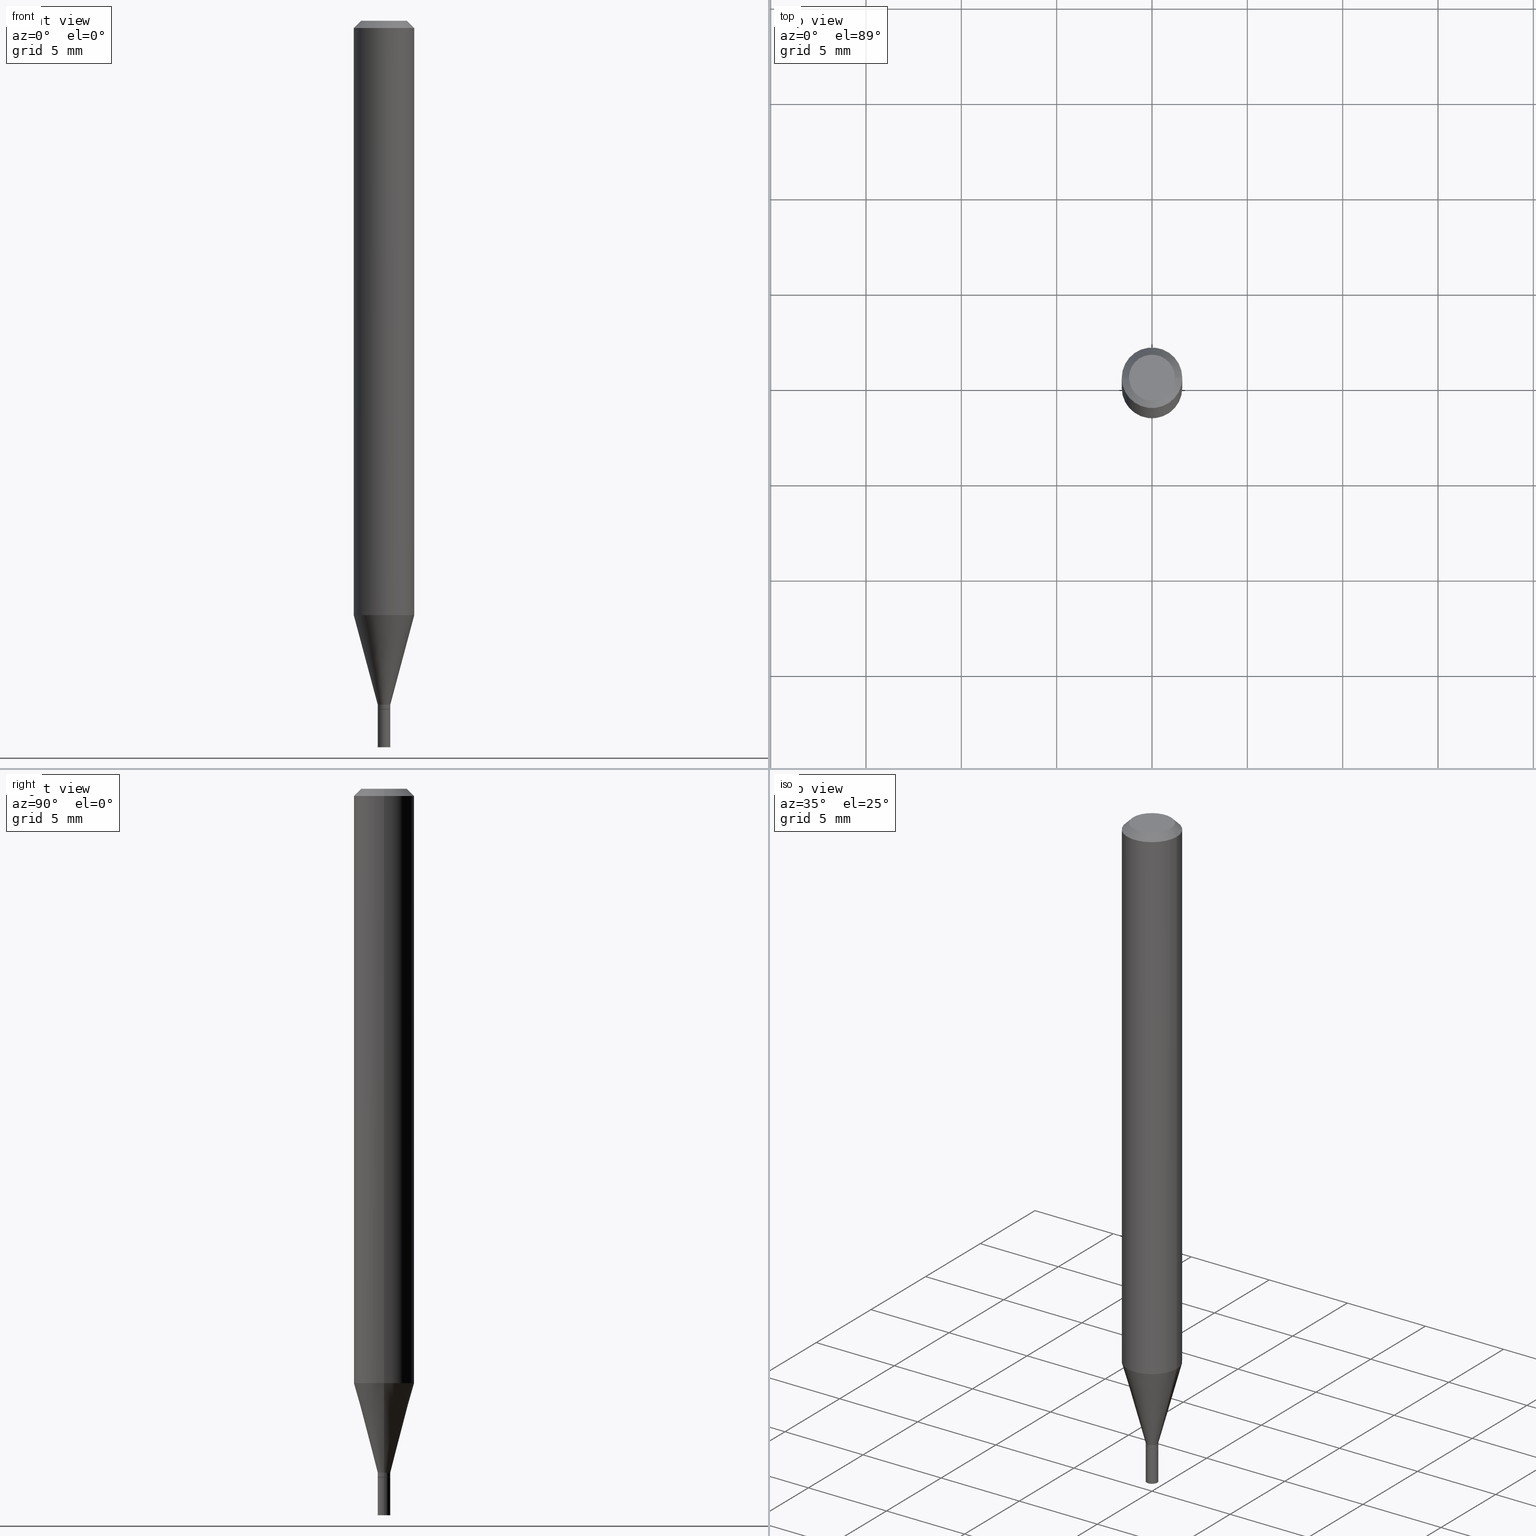
[diagram: canonical four-view strip — front | top / right | iso, engineering-drawing reading convention]
A machine part, canonical four-view strip (front | top / right | iso — engineering-drawing reading convention). The complete STEP part file that produces these views, byte-faithful:
ISO-10303-21;
HEADER;
FILE_DESCRIPTION (( 'STEP AP203' ),
    '1' );
FILE_NAME ('02333.STEP',
    '2024-03-18T20:08:54',
    ( '' ),
    ( '' ),
    'SwSTEP 2.0',
    'SolidWorks 2023',
    '' );
FILE_SCHEMA (( 'CONFIG_CONTROL_DESIGN' ));
ENDSEC;

DATA;
#1 = DESIGN_CONTEXT ( 'detailed design', #463, 'design' ) ;
#2 = EDGE_CURVE ( 'NONE', #51, #70, #418, .T. ) ;
#3 = PLANE ( 'NONE',  #386 ) ;
#4 = CC_DESIGN_PERSON_AND_ORGANIZATION_ASSIGNMENT ( #132, #98, ( #372 ) ) ;
#5 = DIRECTION ( 'NONE',  ( 2.445468806185136597E-29, -3.491481338843145583E-15, -1.000000000000000000 ) ) ;
#6 = ORIENTED_EDGE ( 'NONE', *, *, #212, .F. ) ;
#7 = DIRECTION ( 'NONE',  ( -2.445468806185136597E-29, 3.491481338843145583E-15, 1.000000000000000000 ) ) ;
#8 = DIRECTION ( 'NONE',  ( 1.000000000000000000, -6.982962677686295110E-15, 0.000000000000000000 ) ) ;
#9 = LINE ( 'NONE', #156, #78 ) ;
#10 = ORIENTED_EDGE ( 'NONE', *, *, #319, .T. ) ;
#11 = EDGE_CURVE ( 'NONE', #390, #366, #134, .T. ) ;
#12 = DIRECTION ( 'NONE',  ( -2.445468806185136597E-29, 3.491481338843145583E-15, 1.000000000000000000 ) ) ;
#13 = CIRCLE ( 'NONE', #279, 0.01299999999999999767 ) ;
#14 = CIRCLE ( 'NONE', #438, 0.06250000000000000000 ) ;
#15 = LINE ( 'NONE', #264, #291 ) ;
#16 = ORIENTED_EDGE ( 'NONE', *, *, #404, .T. ) ;
#17 = DIRECTION ( 'NONE',  ( -2.445468806185136597E-29, 3.491481338843145583E-15, 1.000000000000000000 ) ) ;
#18 = CARTESIAN_POINT ( 'NONE',  ( 3.477456642395264859E-29, -4.964886463834953365E-15, -1.421999999999999931 ) ) ;
#19 = ORIENTED_EDGE ( 'NONE', *, *, #27, .T. ) ;
#20 = CLOSED_SHELL ( 'NONE', ( #457, #205, #421, #409 ) ) ;
#21 = ORGANIZATION ( 'UNSPECIFIED', 'UNSPECIFIED', '' ) ;
#22 = DIRECTION ( 'NONE',  ( 1.000000000000000000, -6.982962677686265922E-15, 4.876176775795935793E-29 ) ) ;
#23 = DIRECTION ( 'NONE',  ( 1.000000000000000000, -6.982962677686267499E-15, 4.876176775795935793E-29 ) ) ;
#24 = ORIENTED_EDGE ( 'NONE', *, *, #172, .F. ) ;
#25 = CARTESIAN_POINT ( 'NONE',  ( 0.000000000000000000, 0.000000000000000000, 0.000000000000000000 ) ) ;
#26 = LINE ( 'NONE', #320, #333 ) ;
#27 = EDGE_CURVE ( 'NONE', #369, #366, #260, .T. ) ;
#28 = AXIS2_PLACEMENT_3D ( 'NONE', #50, #304, #346 ) ;
#29 = DIRECTION ( 'NONE',  ( -2.445468806185136597E-29, 3.491481338843145583E-15, 1.000000000000000000 ) ) ;
#30 = EDGE_CURVE ( 'NONE', #92, #398, #454, .T. ) ;
#31 =( GEOMETRIC_REPRESENTATION_CONTEXT ( 3 ) GLOBAL_UNCERTAINTY_ASSIGNED_CONTEXT ( ( #271 ) ) GLOBAL_UNIT_ASSIGNED_CONTEXT ( ( #181, #249, #145 ) ) REPRESENTATION_CONTEXT ( 'NONE', 'WORKASPACE' ) );
#32 = CARTESIAN_POINT ( 'NONE',  ( 0.06250000000000000000, -4.888073874380388472E-16, -0.01499999999999999944 ) ) ;
#33 = MANIFOLD_SOLID_BREP ( 'Body-Move/Copy2[1]', #20 ) ;
#34 = ORIENTED_EDGE ( 'NONE', *, *, #252, .T. ) ;
#35 = CARTESIAN_POINT ( 'NONE',  ( 3.477456642395264859E-29, -4.964886463834953365E-15, -1.421999999999999931 ) ) ;
#36 = AXIS2_PLACEMENT_3D ( 'NONE', #180, #12, #148 ) ;
#37 = LINE ( 'NONE', #387, #289 ) ;
#38 = AXIS2_PLACEMENT_3D ( 'NONE', #298, #450, #239 ) ;
#39 = APPROVAL_DATE_TIME ( #395, #417 ) ;
#40 = APPROVAL_ROLE ( '' ) ;
#41 = CYLINDRICAL_SURFACE ( 'NONE', #149, 0.01299999999999992134 ) ;
#42 = ORIENTED_EDGE ( 'NONE', *, *, #11, .T. ) ;
#43 = ORIENTED_EDGE ( 'NONE', *, *, #221, .T. ) ;
#44 = DIRECTION ( 'NONE',  ( 1.000000000000000000, -6.982962677686267499E-15, 4.852736867747366768E-29 ) ) ;
#45 = EDGE_CURVE ( 'NONE', #398, #92, #176, .T. ) ;
#46 = CARTESIAN_POINT ( 'NONE',  ( 0.01299999999999992134, -5.053919237975453202E-15, -1.421500000000000208 ) ) ;
#47 = LOCAL_TIME ( 16, 8, 54.00000000000000000, #338 ) ;
#48 = DIRECTION ( 'NONE',  ( 0.7071067811865411334, -7.319954787623233957E-15, -0.7071067811865537900 ) ) ;
#49 = VERTEX_POINT ( 'NONE', #155 ) ;
#50 = CARTESIAN_POINT ( 'NONE',  ( 3.668203209277704895E-29, -5.237222008264718177E-15, -1.500000000000000222 ) ) ;
#51 = VERTEX_POINT ( 'NONE', #225 ) ;
#52 = APPROVAL_STATUS ( 'not_yet_approved' ) ;
#53 = LINE ( 'NONE', #143, #290 ) ;
#54 = DATE_AND_TIME ( #433, #47 ) ;
#55 = APPROVAL_PERSON_ORGANIZATION ( #213, #417, #362 ) ;
#56 = LINE ( 'NONE', #198, #116 ) ;
#57 = DIRECTION ( 'NONE',  ( 1.000000000000000000, -6.982962677686299843E-15, 0.000000000000000000 ) ) ;
#58 = ORIENTED_EDGE ( 'NONE', *, *, #231, .F. ) ;
#59 = ORIENTED_EDGE ( 'NONE', *, *, #313, .T. ) ;
#60 = DIRECTION ( 'NONE',  ( -2.445468806185136597E-29, 3.491481338843145583E-15, 1.000000000000000000 ) ) ;
#61 = DIRECTION ( 'NONE',  ( -1.000000000000000000, 6.982962677686265922E-15, -4.876176775795935793E-29 ) ) ;
#62 = CIRCLE ( 'NONE', #185, 0.01299999999999999767 ) ;
#63 = CIRCLE ( 'NONE', #280, 0.06250000000000000000 ) ;
#64 = ADVANCED_FACE ( 'NONE', ( #310 ), #332, .T. ) ;
#65 = ORIENTED_EDGE ( 'NONE', *, *, #30, .F. ) ;
#66 = LINE ( 'NONE', #358, #103 ) ;
#67 = MECHANICAL_CONTEXT ( 'NONE', #326, 'mechanical' ) ;
#68 = EDGE_CURVE ( 'NONE', #118, #345, #208, .T. ) ;
#69 = DIRECTION ( 'NONE',  ( -2.445468806185136877E-29, 3.491481338843145188E-15, 1.000000000000000000 ) ) ;
#70 = VERTEX_POINT ( 'NONE', #46 ) ;
#71 = DIRECTION ( 'NONE',  ( -1.000000000000000000, 6.982962677686266711E-15, 0.000000000000000000 ) ) ;
#72 = AXIS2_PLACEMENT_3D ( 'NONE', #139, #105, #426 ) ;
#73 = DIRECTION ( 'NONE',  ( -2.445468806185136597E-29, 3.491481338843145583E-15, 1.000000000000000000 ) ) ;
#74 = DIRECTION ( 'NONE',  ( -2.445468806185136877E-29, 3.491481338843145188E-15, 1.000000000000000000 ) ) ;
#75 = ORIENTED_EDGE ( 'NONE', *, *, #133, .T. ) ;
#76 = EDGE_LOOP ( 'NONE', ( #170, #441, #356, #308 ) ) ;
#77 = PRODUCT ( '02333', '02333', '', ( #67 ) ) ;
#78 = VECTOR ( 'NONE', #162, 39.37007874015748143 ) ;
#79 = CARTESIAN_POINT ( 'NONE',  ( -0.06249999999999999306, -3.840878345959517263E-15, -1.227263485025340550 ) ) ;
#80 = ORIENTED_EDGE ( 'NONE', *, *, #190, .F. ) ;
#81 = DIRECTION ( 'NONE',  ( -2.445468806185136597E-29, 3.491481338843145583E-15, 1.000000000000000000 ) ) ;
#82 = EDGE_CURVE ( 'NONE', #49, #241, #13, .T. ) ;
#83 = CARTESIAN_POINT ( 'NONE',  ( 3.668203209277705088E-31, -5.237222008264718399E-17, -0.01499999999999999944 ) ) ;
#84 = EDGE_CURVE ( 'NONE', #121, #369, #186, .T. ) ;
#85 = DIRECTION ( 'NONE',  ( -2.445468806185136597E-29, 3.491481338843145583E-15, 1.000000000000000000 ) ) ;
#86 = ORIENTED_EDGE ( 'NONE', *, *, #2, .T. ) ;
#87 = CARTESIAN_POINT ( 'NONE',  ( 3.316907271900976096E-16, 0.04749999999999999362, -3.005280802665715689E-17 ) ) ;
#88 = VERTEX_POINT ( 'NONE', #439 ) ;
#89 = SHAPE_DEFINITION_REPRESENTATION ( #182, #401 ) ;
#90 = EDGE_CURVE ( 'NONE', #321, #88, #62, .T. ) ;
#91 = EDGE_CURVE ( 'NONE', #299, #51, #53, .T. ) ;
#92 = VERTEX_POINT ( 'NONE', #435 ) ;
#93 = AXIS2_PLACEMENT_3D ( 'NONE', #405, #256, #340 ) ;
#94 = DIRECTION ( 'NONE',  ( 1.000000000000000000, -6.982962677686258822E-15, 0.000000000000000000 ) ) ;
#95 = PERSON_AND_ORGANIZATION_ROLE ( 'classification_officer' ) ;
#96 = PLANE ( 'NONE',  #163 ) ;
#97 = LINE ( 'NONE', #295, #187 ) ;
#98 = PERSON_AND_ORGANIZATION_ROLE ( 'design_supplier' ) ;
#99 = DIRECTION ( 'NONE',  ( -2.445468806185136597E-29, 3.491481338843145583E-15, 1.000000000000000000 ) ) ;
#100 = DIRECTION ( 'NONE',  ( 1.000000000000000000, -6.982962677686266711E-15, 0.000000000000000000 ) ) ;
#101 = PERSON_AND_ORGANIZATION_ROLE ( 'design_owner' ) ;
#102 = CIRCLE ( 'NONE', #28, 0.01299999999999999767 ) ;
#103 = VECTOR ( 'NONE', #161, 39.37007874015748143 ) ;
#104 = LENGTH_MEASURE_WITH_UNIT ( LENGTH_MEASURE( 0.02539999999999999897 ), #419 );
#105 = DIRECTION ( 'NONE',  ( -2.445468806185136597E-29, 3.491481338843145583E-15, 1.000000000000000000 ) ) ;
#106 = DIRECTION ( 'NONE',  ( 1.000000000000000000, 0.000000000000000000, 0.000000000000000000 ) ) ;
#107 = FACE_OUTER_BOUND ( 'NONE', #234, .T. ) ;
#108 = CYLINDRICAL_SURFACE ( 'NONE', #38, 0.06250000000000000000 ) ;
#109 = COORDINATED_UNIVERSAL_TIME_OFFSET ( 5, 0, .BEHIND. ) ;
#110 = FACE_OUTER_BOUND ( 'NONE', #199, .T. ) ;
#111 = DIRECTION ( 'NONE',  ( -2.445468806185136877E-29, 3.491481338843145188E-15, 1.000000000000000000 ) ) ;
#112 = ORIENTED_EDGE ( 'NONE', *, *, #45, .F. ) ;
#113 = CARTESIAN_POINT ( 'NONE',  ( 3.001234569599529890E-29, -4.284967555809580668E-15, -1.227263485025340550 ) ) ;
#114 = DIRECTION ( 'NONE',  ( -2.445468806185136597E-29, 3.491481338843145583E-15, 1.000000000000000000 ) ) ;
#115 = AXIS2_PLACEMENT_3D ( 'NONE', #193, #147, #223 ) ;
#116 = VECTOR ( 'NONE', #355, 39.37007874015748143 ) ;
#117 = EDGE_LOOP ( 'NONE', ( #314, #151, #65, #131 ) ) ;
#118 = VERTEX_POINT ( 'NONE', #287 ) ;
#119 = DIRECTION ( 'NONE',  ( -2.445468806185136597E-29, 3.491481338843145583E-15, 1.000000000000000000 ) ) ;
#120 = CIRCLE ( 'NONE', #209, 0.01299999999999999767 ) ;
#121 = VERTEX_POINT ( 'NONE', #206 ) ;
#122 = ORIENTED_EDGE ( 'NONE', *, *, #425, .T. ) ;
#123 = ADVANCED_FACE ( 'NONE', ( #283 ), #379, .T. ) ;
#124 = EDGE_LOOP ( 'NONE', ( #6, #456, #461, #192 ) ) ;
#125 = DIRECTION ( 'NONE',  ( -2.445468806185136597E-29, 3.491481338843145583E-15, 1.000000000000000000 ) ) ;
#126 = PERSON_AND_ORGANIZATION ( #451, #21 ) ;
#127 = AXIS2_PLACEMENT_3D ( 'NONE', #266, #413, #44 ) ;
#128 = FACE_OUTER_BOUND ( 'NONE', #124, .T. ) ;
#129 = DATE_AND_TIME ( #254, #188 ) ;
#130 = EDGE_LOOP ( 'NONE', ( #275, #453, #59, #257 ) ) ;
#131 = ORIENTED_EDGE ( 'NONE', *, *, #171, .F. ) ;
#132 = PERSON_AND_ORGANIZATION ( #451, #21 ) ;
#133 = EDGE_CURVE ( 'NONE', #88, #321, #102, .T. ) ;
#134 = CIRCLE ( 'NONE', #173, 0.06250000000000000000 ) ;
#135 = AXIS2_PLACEMENT_3D ( 'NONE', #284, #29, #242 ) ;
#136 = ADVANCED_FACE ( 'NONE', ( #110 ), #380, .T. ) ;
#137 = CALENDAR_DATE ( 2024, 18, 3 ) ;
#138 = AXIS2_PLACEMENT_3D ( 'NONE', #113, #85, #444 ) ;
#139 = CARTESIAN_POINT ( 'NONE',  ( 0.000000000000000000, 0.000000000000000000, 0.000000000000000000 ) ) ;
#140 = AXIS2_PLACEMENT_3D ( 'NONE', #246, #203, #167 ) ;
#141 = ADVANCED_FACE ( 'NONE', ( #402 ), #153, .F. ) ;
#142 = PERSON_AND_ORGANIZATION ( #451, #21 ) ;
#143 = CARTESIAN_POINT ( 'NONE',  ( -0.01249999999999999896, -4.876068621864941157E-15, -1.421999999999999931 ) ) ;
#144 = DIRECTION ( 'NONE',  ( 1.000000000000000000, -6.982962677686299843E-15, 0.000000000000000000 ) ) ;
#145 =( NAMED_UNIT ( * ) SI_UNIT ( $, .STERADIAN. ) SOLID_ANGLE_UNIT ( ) );
#146 = EDGE_LOOP ( 'NONE', ( #24, #276, #43, #325 ) ) ;
#147 = DIRECTION ( 'NONE',  ( -2.445468806185136597E-29, 3.491481338843145583E-15, 1.000000000000000000 ) ) ;
#148 = DIRECTION ( 'NONE',  ( 1.000000000000000000, -6.982962677686295110E-15, 0.000000000000000000 ) ) ;
#149 = AXIS2_PLACEMENT_3D ( 'NONE', #383, #60, #201 ) ;
#150 = DIRECTION ( 'NONE',  ( 1.000000000000000000, -6.982962677686266711E-15, 4.876176775795935232E-29 ) ) ;
#151 = ORIENTED_EDGE ( 'NONE', *, *, #231, .T. ) ;
#152 = EDGE_CURVE ( 'NONE', #345, #118, #63, .T. ) ;
#153 = PLANE ( 'NONE',  #353 ) ;
#154 = ORIENTED_EDGE ( 'NONE', *, *, #319, .F. ) ;
#155 = CARTESIAN_POINT ( 'NONE',  ( 0.01299999999999999767, -5.055664978644874706E-15, -1.421999999999999931 ) ) ;
#156 = CARTESIAN_POINT ( 'NONE',  ( 0.01299999999999992134, -9.077851480992092194E-17, 6.339029808534677610E-31 ) ) ;
#157 = DIRECTION ( 'NONE',  ( 1.000000000000000000, -6.982962677686270655E-15, 0.000000000000000000 ) ) ;
#158 = ORIENTED_EDGE ( 'NONE', *, *, #82, .T. ) ;
#159 = CIRCLE ( 'NONE', #328, 0.01299999999999992134 ) ;
#160 = CARTESIAN_POINT ( 'NONE',  ( 0.000000000000000000, 0.000000000000000000, 0.000000000000000000 ) ) ;
#161 = DIRECTION ( 'NONE',  ( 0.7071067811865642261, -2.468850131082431399E-15, 0.7071067811865309194 ) ) ;
#162 = DIRECTION ( 'NONE',  ( -2.445468806185136877E-29, 3.491481338843145188E-15, 1.000000000000000000 ) ) ;
#163 = AXIS2_PLACEMENT_3D ( 'NONE', #87, #245, #61 ) ;
#164 = EDGE_LOOP ( 'NONE', ( #406, #224, #80, #178 ) ) ;
#165 = APPROVAL_PERSON_ORGANIZATION ( #251, #442, #40 ) ;
#166 = PERSON_AND_ORGANIZATION_ROLE ( 'creator' ) ;
#167 = DIRECTION ( 'NONE',  ( -1.000000000000000000, 6.982962677686265922E-15, -4.876176775795935793E-29 ) ) ;
#168 = CARTESIAN_POINT ( 'NONE',  ( -0.06250000000000000000, -1.724580678096051257E-15, -0.01499999999999999944 ) ) ;
#169 = ADVANCED_FACE ( 'NONE', ( #445 ), #41, .T. ) ;
#170 = ORIENTED_EDGE ( 'NONE', *, *, #68, .T. ) ;
#171 = EDGE_CURVE ( 'NONE', #70, #92, #9, .T. ) ;
#172 = EDGE_CURVE ( 'NONE', #345, #390, #37, .T. ) ;
#173 = AXIS2_PLACEMENT_3D ( 'NONE', #312, #384, #367 ) ;
#174 = DIRECTION ( 'NONE',  ( -2.445468806185136597E-29, 3.491481338843145583E-15, 1.000000000000000000 ) ) ;
#175 = COORDINATED_UNIVERSAL_TIME_OFFSET ( 5, 0, .BEHIND. ) ;
#176 = CIRCLE ( 'NONE', #436, 0.01299999999999992134 ) ;
#177 = SECURITY_CLASSIFICATION ( '', '', #381 ) ;
#178 = ORIENTED_EDGE ( 'NONE', *, *, #236, .F. ) ;
#179 = LINE ( 'NONE', #400, #196 ) ;
#180 = CARTESIAN_POINT ( 'NONE',  ( 3.477456642395264859E-29, -4.964886463834953365E-15, -1.421999999999999931 ) ) ;
#181 =( CONVERSION_BASED_UNIT ( 'INCH', #104 ) LENGTH_UNIT ( ) NAMED_UNIT ( #422 ) );
#182 = PRODUCT_DEFINITION_SHAPE ( 'NONE', 'NONE',  #244 ) ;
#183 = ORIENTED_EDGE ( 'NONE', *, *, #84, .F. ) ;
#184 = DIRECTION ( 'NONE',  ( 1.000000000000000000, -6.982962677686258822E-15, 0.000000000000000000 ) ) ;
#185 = AXIS2_PLACEMENT_3D ( 'NONE', #232, #377, #184 ) ;
#186 = CIRCLE ( 'NONE', #127, 0.04749999999999999362 ) ;
#187 = VECTOR ( 'NONE', #111, 39.37007874015748143 ) ;
#188 = LOCAL_TIME ( 16, 8, 54.00000000000000000, #109 ) ;
#189 = CC_DESIGN_PERSON_AND_ORGANIZATION_ASSIGNMENT ( #202, #166, ( #372 ) ) ;
#190 = EDGE_CURVE ( 'NONE', #70, #51, #159, .T. ) ;
#191 = CARTESIAN_POINT ( 'NONE',  ( 3.668203209277705088E-31, -5.237222008264718399E-17, -0.01499999999999999944 ) ) ;
#192 = ORIENTED_EDGE ( 'NONE', *, *, #152, .F. ) ;
#193 = CARTESIAN_POINT ( 'NONE',  ( 3.453001954333413314E-29, -4.929971650446521716E-15, -1.412000000000000144 ) ) ;
#194 = FACE_OUTER_BOUND ( 'NONE', #347, .T. ) ;
#195 = COORDINATED_UNIVERSAL_TIME_OFFSET ( 5, 0, .BEHIND. ) ;
#196 = VECTOR ( 'NONE', #74, 39.37007874015748143 ) ;
#197 = CARTESIAN_POINT ( 'NONE',  ( 3.477456642395264859E-29, -4.964886463834953365E-15, -1.421999999999999931 ) ) ;
#198 = CARTESIAN_POINT ( 'NONE',  ( 0.06250000000000000000, -4.364351673553916694E-16, 3.047610484872459871E-30 ) ) ;
#199 = EDGE_LOOP ( 'NONE', ( #443, #183, #261, #42 ) ) ;
#200 = ADVANCED_FACE ( 'NONE', ( #465 ), #329, .T. ) ;
#201 = DIRECTION ( 'NONE',  ( 1.000000000000000000, -6.982962677686266711E-15, 4.876176775795935232E-29 ) ) ;
#202 = PERSON_AND_ORGANIZATION ( #451, #21 ) ;
#203 = DIRECTION ( 'NONE',  ( 2.438088387897960049E-29, -3.491481338843145188E-15, -1.000000000000000000 ) ) ;
#204 = CIRCLE ( 'NONE', #36, 0.01249999999999999896 ) ;
#205 = ADVANCED_FACE ( 'NONE', ( #336 ), #3, .F. ) ;
#206 = CARTESIAN_POINT ( 'NONE',  ( -0.04749999999999999362, 3.578768372314215436E-16, 2.715851111367820755E-16 ) ) ;
#207 = PLANE ( 'NONE',  #140 ) ;
#208 = CIRCLE ( 'NONE', #138, 0.06250000000000000000 ) ;
#209 = AXIS2_PLACEMENT_3D ( 'NONE', #35, #459, #94 ) ;
#210 = APPROVAL_STATUS ( 'not_yet_approved' ) ;
#211 = DIRECTION ( 'NONE',  ( -2.445468806185136597E-29, 3.491481338843145583E-15, 1.000000000000000000 ) ) ;
#212 = EDGE_CURVE ( 'NONE', #398, #345, #408, .T. ) ;
#213 = PERSON_AND_ORGANIZATION ( #451, #21 ) ;
#214 = APPROVAL_STATUS ( 'not_yet_approved' ) ;
#215 = DIRECTION ( 'NONE',  ( -2.438088387897960049E-29, 3.491481338843145188E-15, 1.000000000000000000 ) ) ;
#216 = ORIENTED_EDGE ( 'NONE', *, *, #354, .F. ) ;
#217 = APPROVAL ( #52, 'UNSPECIFIED' ) ;
#218 = CARTESIAN_POINT ( 'NONE',  ( 3.668203209277705088E-31, -5.237222008264718399E-17, -0.01499999999999999944 ) ) ;
#219 = CARTESIAN_POINT ( 'NONE',  ( 3.477456642395264859E-29, -4.964886463834953365E-15, -1.421999999999999931 ) ) ;
#220 = CARTESIAN_POINT ( 'NONE',  ( 0.000000000000000000, 0.000000000000000000, 0.000000000000000000 ) ) ;
#221 = EDGE_CURVE ( 'NONE', #118, #366, #56, .T. ) ;
#222 = EDGE_LOOP ( 'NONE', ( #341, #10 ) ) ;
#223 = DIRECTION ( 'NONE',  ( 1.000000000000000000, -6.982962677686299843E-15, 0.000000000000000000 ) ) ;
#224 = ORIENTED_EDGE ( 'NONE', *, *, #91, .T. ) ;
#225 = CARTESIAN_POINT ( 'NONE',  ( -0.01299999999999992134, -4.870770167516720333E-15, -1.421500000000000208 ) ) ;
#226 = CARTESIAN_POINT ( 'NONE',  ( -0.01299999999999992134, -4.837601094797709398E-15, -1.412000000000000144 ) ) ;
#227 = DATE_TIME_ROLE ( 'classification_date' ) ;
#228 = AXIS2_PLACEMENT_3D ( 'NONE', #218, #253, #71 ) ;
#229 = DIRECTION ( 'NONE',  ( 1.000000000000000000, -6.982962677686295110E-15, 0.000000000000000000 ) ) ;
#230 = PERSON_AND_ORGANIZATION ( #451, #21 ) ;
#231 = EDGE_CURVE ( 'NONE', #51, #398, #26, .T. ) ;
#232 = CARTESIAN_POINT ( 'NONE',  ( 3.668203209277704895E-29, -5.237222008264718177E-15, -1.500000000000000222 ) ) ;
#233 = FACE_OUTER_BOUND ( 'NONE', #237, .T. ) ;
#234 = EDGE_LOOP ( 'NONE', ( #154, #19, #16, #216 ) ) ;
#235 = CIRCLE ( 'NONE', #93, 0.04749999999999999362 ) ;
#236 = EDGE_CURVE ( 'NONE', #259, #70, #66, .T. ) ;
#237 = EDGE_LOOP ( 'NONE', ( #296, #397, #376, #309 ) ) ;
#238 = CARTESIAN_POINT ( 'NONE',  ( 0.01249999999999999896, -5.052173497306032488E-15, -1.421999999999999931 ) ) ;
#239 = DIRECTION ( 'NONE',  ( 1.000000000000000000, -6.982962677686266711E-15, 4.876176775795935793E-29 ) ) ;
#240 = EDGE_LOOP ( 'NONE', ( #58, #86, #392, #112 ) ) ;
#241 = VERTEX_POINT ( 'NONE', #318 ) ;
#242 = DIRECTION ( 'NONE',  ( 1.000000000000000000, -6.982962677686299843E-15, 0.000000000000000000 ) ) ;
#243 = APPROVAL_DATE_TIME ( #129, #442 ) ;
#244 = PRODUCT_DEFINITION ( 'UNKNOWN', '', #372, #1 ) ;
#245 = DIRECTION ( 'NONE',  ( 2.438088387897960049E-29, -3.491481338843145188E-15, -1.000000000000000000 ) ) ;
#246 = CARTESIAN_POINT ( 'NONE',  ( 9.077851480995622346E-17, 0.01299999999999503462, -1.421999999999999931 ) ) ;
#247 = CC_DESIGN_APPROVAL ( #417, ( #244 ) ) ;
#248 = AXIS2_PLACEMENT_3D ( 'NONE', #197, #99, #274 ) ;
#249 =( NAMED_UNIT ( * ) PLANE_ANGLE_UNIT ( ) SI_UNIT ( $, .RADIAN. ) );
#250 = PERSON_AND_ORGANIZATION ( #451, #21 ) ;
#251 = PERSON_AND_ORGANIZATION ( #451, #21 ) ;
#252 = EDGE_CURVE ( 'NONE', #241, #49, #120, .T. ) ;
#253 = DIRECTION ( 'NONE',  ( 2.445468806185136597E-29, -3.491481338843145583E-15, -1.000000000000000000 ) ) ;
#254 = CALENDAR_DATE ( 2024, 18, 3 ) ;
#255 = EDGE_LOOP ( 'NONE', ( #278, #343 ) ) ;
#256 = DIRECTION ( 'NONE',  ( -2.445468806185136597E-29, 3.491481338843145583E-15, 1.000000000000000000 ) ) ;
#257 = ORIENTED_EDGE ( 'NONE', *, *, #252, .F. ) ;
#258 = CARTESIAN_POINT ( 'NONE',  ( -0.01299999999999999767, -5.008683680401023059E-15, -1.500000000000000222 ) ) ;
#259 = VERTEX_POINT ( 'NONE', #238 ) ;
#260 = LINE ( 'NONE', #306, #327 ) ;
#261 = ORIENTED_EDGE ( 'NONE', *, *, #354, .T. ) ;
#262 = CALENDAR_DATE ( 2024, 18, 3 ) ;
#263 = CARTESIAN_POINT ( 'NONE',  ( 3.001234569599529890E-29, -4.284967555809580668E-15, -1.227263485025340550 ) ) ;
#264 = CARTESIAN_POINT ( 'NONE',  ( 0.01299999999999992134, -5.020750165256443057E-15, -1.412000000000000144 ) ) ;
#265 = EDGE_LOOP ( 'NONE', ( #316, #375, #351, #288 ) ) ;
#266 = CARTESIAN_POINT ( 'NONE',  ( -6.641529175093299695E-45, 9.482343474417248123E-31, 2.715851111367844914E-16 ) ) ;
#267 = COORDINATED_UNIVERSAL_TIME_OFFSET ( 5, 0, .BEHIND. ) ;
#268 = ADVANCED_FACE ( 'NONE', ( #128 ), #455, .T. ) ;
#269 = CARTESIAN_POINT ( 'NONE',  ( -0.01299999999999992134, -4.339239720378613725E-15, -1.412000000000000144 ) ) ;
#270 = CARTESIAN_POINT ( 'NONE',  ( 3.476233907992172058E-29, -4.963140723165531861E-15, -1.421500000000000208 ) ) ;
#271 = UNCERTAINTY_MEASURE_WITH_UNIT (LENGTH_MEASURE( 1.000000000000000082E-05 ), #181, 'distance_accuracy_value', 'NONE');
#272 = APPROVAL_ROLE ( '' ) ;
#273 = CARTESIAN_POINT ( 'NONE',  ( 3.453001954333413314E-29, -4.929971650446521716E-15, -1.412000000000000144 ) ) ;
#274 = DIRECTION ( 'NONE',  ( 1.000000000000000000, -6.982962677686295110E-15, 0.000000000000000000 ) ) ;
#275 = ORIENTED_EDGE ( 'NONE', *, *, #425, .F. ) ;
#276 = ORIENTED_EDGE ( 'NONE', *, *, #152, .T. ) ;
#277 = APPROVAL_DATE_TIME ( #452, #217 ) ;
#278 = ORIENTED_EDGE ( 'NONE', *, *, #133, .F. ) ;
#279 = AXIS2_PLACEMENT_3D ( 'NONE', #219, #119, #448 ) ;
#280 = AXIS2_PLACEMENT_3D ( 'NONE', #263, #17, #157 ) ;
#281 = CC_DESIGN_APPROVAL ( #442, ( #372 ) ) ;
#282 = CARTESIAN_POINT ( 'NONE',  ( -0.06250000000000000000, 3.840629472727444916E-16, -0.01499999999999999944 ) ) ;
#283 = FACE_OUTER_BOUND ( 'NONE', #117, .T. ) ;
#284 = CARTESIAN_POINT ( 'NONE',  ( 3.453001954333413314E-29, -4.929971650446521716E-15, -1.412000000000000144 ) ) ;
#285 = FACE_OUTER_BOUND ( 'NONE', #335, .T. ) ;
#286 = ORIENTED_EDGE ( 'NONE', *, *, #428, .F. ) ;
#287 = CARTESIAN_POINT ( 'NONE',  ( 0.06249999999999999306, -4.721402723164972337E-15, -1.227263485025340550 ) ) ;
#288 = ORIENTED_EDGE ( 'NONE', *, *, #330, .F. ) ;
#289 = VECTOR ( 'NONE', #69, 39.37007874015748143 ) ;
#290 = VECTOR ( 'NONE', #297, 39.37007874015748143 ) ;
#291 = VECTOR ( 'NONE', #411, 39.37007874015748854 ) ;
#292 = CARTESIAN_POINT ( 'NONE',  ( 3.576687321579069994E-29, -5.368277968210015545E-15, -1.500000000000000222 ) ) ;
#293 = CARTESIAN_POINT ( 'NONE',  ( 0.000000000000000000, 0.000000000000000000, 0.000000000000000000 ) ) ;
#294 = PERSON_AND_ORGANIZATION_ROLE ( 'creator' ) ;
#295 = CARTESIAN_POINT ( 'NONE',  ( 0.01299999999999999767, -9.077851480992146428E-17, 6.339029808534715270E-31 ) ) ;
#296 = ORIENTED_EDGE ( 'NONE', *, *, #91, .F. ) ;
#297 = DIRECTION ( 'NONE',  ( -0.7071067811865642261, 7.493145998870414114E-15, 0.7071067811865309194 ) ) ;
#298 = CARTESIAN_POINT ( 'NONE',  ( 0.000000000000000000, 0.000000000000000000, 0.000000000000000000 ) ) ;
#299 = VERTEX_POINT ( 'NONE', #323 ) ;
#300 = CARTESIAN_POINT ( 'NONE',  ( 3.453001954333413314E-29, -4.929971650446521716E-15, -1.412000000000000144 ) ) ;
#301 = LOCAL_TIME ( 16, 8, 54.00000000000000000, #175 ) ;
#302 = FACE_OUTER_BOUND ( 'NONE', #265, .T. ) ;
#303 = LOCAL_TIME ( 16, 8, 54.00000000000000000, #267 ) ;
#304 = DIRECTION ( 'NONE',  ( -2.445468806185136597E-29, 3.491481338843145583E-15, 1.000000000000000000 ) ) ;
#305 = EDGE_LOOP ( 'NONE', ( #446, #286 ) ) ;
#306 = CARTESIAN_POINT ( 'NONE',  ( 0.06250000000000000000, -4.811533449433679005E-16, -0.01499999999999999944 ) ) ;
#307 = DIRECTION ( 'NONE',  ( 1.000000000000000000, -6.982962677686265922E-15, 4.876176775795935793E-29 ) ) ;
#308 = ORIENTED_EDGE ( 'NONE', *, *, #221, .F. ) ;
#309 = ORIENTED_EDGE ( 'NONE', *, *, #2, .F. ) ;
#310 = FACE_OUTER_BOUND ( 'NONE', #164, .T. ) ;
#311 = CONICAL_SURFACE ( 'NONE', #228, 0.06250000000000000000, 0.7853981633974393972 ) ;
#312 = CARTESIAN_POINT ( 'NONE',  ( 3.668203209277705088E-31, -5.237222008264718399E-17, -0.01499999999999999944 ) ) ;
#313 = EDGE_CURVE ( 'NONE', #88, #49, #97, .T. ) ;
#314 = ORIENTED_EDGE ( 'NONE', *, *, #190, .T. ) ;
#315 = DIRECTION ( 'NONE',  ( -0.7071067811865411334, 2.468850131082190402E-15, -0.7071067811865537900 ) ) ;
#316 = ORIENTED_EDGE ( 'NONE', *, *, #30, .T. ) ;
#317 = DIRECTION ( 'NONE',  ( -2.445468806185136597E-29, 3.491481338843145583E-15, 1.000000000000000000 ) ) ;
#318 = CARTESIAN_POINT ( 'NONE',  ( -0.01299999999999999767, -5.008683680401023059E-15, -1.421999999999999931 ) ) ;
#319 = EDGE_CURVE ( 'NONE', #369, #121, #235, .T. ) ;
#320 = CARTESIAN_POINT ( 'NONE',  ( -0.01299999999999992134, 9.237055564881246526E-17, -6.394615617331338392E-31 ) ) ;
#321 = VERTEX_POINT ( 'NONE', #258 ) ;
#322 = AXIS2_PLACEMENT_3D ( 'NONE', #191, #5, #437 ) ;
#323 = CARTESIAN_POINT ( 'NONE',  ( -0.01249999999999999896, -4.873419394690830745E-15, -1.421999999999999931 ) ) ;
#324 = CARTESIAN_POINT ( 'NONE',  ( 3.477456642395264859E-29, -4.964886463834953365E-15, -1.421999999999999931 ) ) ;
#325 = ORIENTED_EDGE ( 'NONE', *, *, #11, .F. ) ;
#326 = APPLICATION_CONTEXT ( 'configuration controlled 3d designs of mechanical parts and assemblies' ) ;
#327 = VECTOR ( 'NONE', #48, 39.37007874015748854 ) ;
#328 = AXIS2_PLACEMENT_3D ( 'NONE', #337, #7, #144 ) ;
#329 = CYLINDRICAL_SURFACE ( 'NONE', #72, 0.06250000000000000000 ) ;
#330 = EDGE_CURVE ( 'NONE', #92, #118, #15, .T. ) ;
#331 = FACE_OUTER_BOUND ( 'NONE', #130, .T. ) ;
#332 = CONICAL_SURFACE ( 'NONE', #359, 0.01249999999999999896, 0.7853981633974718157 ) ;
#333 = VECTOR ( 'NONE', #389, 39.37007874015748143 ) ;
#334 = APPROVAL_PERSON_ORGANIZATION ( #230, #217, #272 ) ;
#335 = EDGE_LOOP ( 'NONE', ( #158, #34 ) ) ;
#336 = FACE_OUTER_BOUND ( 'NONE', #255, .T. ) ;
#337 = CARTESIAN_POINT ( 'NONE',  ( 3.476233907992172058E-29, -4.963140723165531861E-15, -1.421500000000000208 ) ) ;
#338 = COORDINATED_UNIVERSAL_TIME_OFFSET ( 5, 0, .BEHIND. ) ;
#339 = CC_DESIGN_PERSON_AND_ORGANIZATION_ASSIGNMENT ( #142, #294, ( #244 ) ) ;
#340 = DIRECTION ( 'NONE',  ( 1.000000000000000000, -6.982962677686267499E-15, 4.852736867747366768E-29 ) ) ;
#341 = ORIENTED_EDGE ( 'NONE', *, *, #84, .T. ) ;
#342 = MANIFOLD_SOLID_BREP ( 'Body-Move/Copy2[2]', #385 ) ;
#343 = ORIENTED_EDGE ( 'NONE', *, *, #90, .F. ) ;
#344 = AXIS2_PLACEMENT_3D ( 'NONE', #25, #125, #23 ) ;
#345 = VERTEX_POINT ( 'NONE', #79 ) ;
#346 = DIRECTION ( 'NONE',  ( 1.000000000000000000, -6.982962677686258822E-15, 0.000000000000000000 ) ) ;
#347 = EDGE_LOOP ( 'NONE', ( #75, #122, #403, #357 ) ) ;
#348 = CYLINDRICAL_SURFACE ( 'NONE', #344, 0.01299999999999999767 ) ;
#349 = EDGE_CURVE ( 'NONE', #259, #299, #370, .T. ) ;
#350 = DIRECTION ( 'NONE',  ( 1.000000000000000000, -6.982962677686299843E-15, 0.000000000000000000 ) ) ;
#351 = ORIENTED_EDGE ( 'NONE', *, *, #68, .F. ) ;
#352 = DIRECTION ( 'NONE',  ( -2.445468806185136597E-29, 3.491481338843145583E-15, 1.000000000000000000 ) ) ;
#353 = AXIS2_PLACEMENT_3D ( 'NONE', #440, #215, #307 ) ;
#354 = EDGE_CURVE ( 'NONE', #121, #390, #458, .T. ) ;
#355 = DIRECTION ( 'NONE',  ( -2.445468806185136877E-29, 3.491481338843145188E-15, 1.000000000000000000 ) ) ;
#356 = ORIENTED_EDGE ( 'NONE', *, *, #404, .F. ) ;
#357 = ORIENTED_EDGE ( 'NONE', *, *, #313, .F. ) ;
#358 = CARTESIAN_POINT ( 'NONE',  ( 0.01249999999999999896, -5.052173497306032488E-15, -1.421999999999999931 ) ) ;
#359 = AXIS2_PLACEMENT_3D ( 'NONE', #18, #352, #229 ) ;
#360 = VECTOR ( 'NONE', #315, 39.37007874015748854 ) ;
#361 = VECTOR ( 'NONE', #378, 39.37007874015748854 ) ;
#362 = APPROVAL_ROLE ( '' ) ;
#363 = DATE_TIME_ROLE ( 'creation_date' ) ;
#364 = APPLICATION_PROTOCOL_DEFINITION ( 'international standard', 'config_control_design', 1994, #463 ) ;
#365 = CONICAL_SURFACE ( 'NONE', #462, 0.01299999999999992134, 0.2617993877991495189 ) ;
#366 = VERTEX_POINT ( 'NONE', #32 ) ;
#367 = DIRECTION ( 'NONE',  ( 1.000000000000000000, -6.982962677686266711E-15, 0.000000000000000000 ) ) ;
#368 = AXIS2_PLACEMENT_3D ( 'NONE', #160, #317, #150 ) ;
#369 = VERTEX_POINT ( 'NONE', #382 ) ;
#370 = CIRCLE ( 'NONE', #248, 0.01249999999999999896 ) ;
#371 = CALENDAR_DATE ( 2024, 18, 3 ) ;
#372 = PRODUCT_DEFINITION_FORMATION_WITH_SPECIFIED_SOURCE ( 'ANY', '', #77, .NOT_KNOWN. ) ;
#373 = ADVANCED_FACE ( 'NONE', ( #416 ), #96, .F. ) ;
#374 = CC_DESIGN_PERSON_AND_ORGANIZATION_ASSIGNMENT ( #126, #95, ( #177 ) ) ;
#375 = ORIENTED_EDGE ( 'NONE', *, *, #212, .T. ) ;
#376 = ORIENTED_EDGE ( 'NONE', *, *, #236, .T. ) ;
#377 = DIRECTION ( 'NONE',  ( -2.445468806185136597E-29, 3.491481338843145583E-15, 1.000000000000000000 ) ) ;
#378 = DIRECTION ( 'NONE',  ( -0.2588190451025207950, 5.211531920934546309E-15, 0.9659258262890682012 ) ) ;
#379 = CYLINDRICAL_SURFACE ( 'NONE', #368, 0.01299999999999992134 ) ;
#380 = CONICAL_SURFACE ( 'NONE', #322, 0.06250000000000000000, 0.7853981633974393972 ) ;
#381 = SECURITY_CLASSIFICATION_LEVEL ( 'unclassified' ) ;
#382 = CARTESIAN_POINT ( 'NONE',  ( 0.04749999999999999362, -4.035134999187573693E-16, 2.715851111367870552E-16 ) ) ;
#383 = CARTESIAN_POINT ( 'NONE',  ( 0.000000000000000000, 0.000000000000000000, 0.000000000000000000 ) ) ;
#384 = DIRECTION ( 'NONE',  ( -2.445468806185136597E-29, 3.491481338843145583E-15, 1.000000000000000000 ) ) ;
#385 = CLOSED_SHELL ( 'NONE', ( #123, #64, #424, #396, #434, #268, #200, #136, #373, #141, #391, #169 ) ) ;
#386 = AXIS2_PLACEMENT_3D ( 'NONE', #292, #430, #22 ) ;
#387 = CARTESIAN_POINT ( 'NONE',  ( -0.06250000000000000000, 4.440892098500626162E-16, -3.074334431409316114E-30 ) ) ;
#388 = CC_DESIGN_DATE_AND_TIME_ASSIGNMENT ( #414, #227, ( #177 ) ) ;
#389 = DIRECTION ( 'NONE',  ( -2.445468806185136877E-29, 3.491481338843145188E-15, 1.000000000000000000 ) ) ;
#390 = VERTEX_POINT ( 'NONE', #168 ) ;
#391 = ADVANCED_FACE ( 'NONE', ( #233 ), #420, .T. ) ;
#392 = ORIENTED_EDGE ( 'NONE', *, *, #171, .T. ) ;
#393 = AXIS2_PLACEMENT_3D ( 'NONE', #270, #415, #350 ) ;
#394 = CYLINDRICAL_SURFACE ( 'NONE', #412, 0.01299999999999999767 ) ;
#395 = DATE_AND_TIME ( #137, #301 ) ;
#396 = ADVANCED_FACE ( 'NONE', ( #432 ), #108, .T. ) ;
#397 = ORIENTED_EDGE ( 'NONE', *, *, #428, .T. ) ;
#398 = VERTEX_POINT ( 'NONE', #269 ) ;
#399 = PRODUCT_RELATED_PRODUCT_CATEGORY ( 'detail', '', ( #77 ) ) ;
#400 = CARTESIAN_POINT ( 'NONE',  ( -0.01299999999999999767, 9.237055564881300760E-17, -6.394615617331376928E-31 ) ) ;
#401 = ADVANCED_BREP_SHAPE_REPRESENTATION ( '02333', ( #33, #342, #423 ), #31 ) ;
#402 = FACE_OUTER_BOUND ( 'NONE', #305, .T. ) ;
#403 = ORIENTED_EDGE ( 'NONE', *, *, #82, .F. ) ;
#404 = EDGE_CURVE ( 'NONE', #366, #390, #14, .T. ) ;
#405 = CARTESIAN_POINT ( 'NONE',  ( -6.641529175093299695E-45, 9.482343474417248123E-31, 2.715851111367844914E-16 ) ) ;
#406 = ORIENTED_EDGE ( 'NONE', *, *, #349, .T. ) ;
#407 = DIRECTION ( 'NONE',  ( 1.000000000000000000, -6.982962677686299843E-15, 0.000000000000000000 ) ) ;
#408 = LINE ( 'NONE', #226, #361 ) ;
#409 = ADVANCED_FACE ( 'NONE', ( #285 ), #207, .F. ) ;
#410 = CC_DESIGN_PERSON_AND_ORGANIZATION_ASSIGNMENT ( #250, #101, ( #77 ) ) ;
#411 = DIRECTION ( 'NONE',  ( 0.2588190451025207950, 1.565188264969625912E-15, 0.9659258262890682012 ) ) ;
#412 = AXIS2_PLACEMENT_3D ( 'NONE', #293, #114, #431 ) ;
#413 = DIRECTION ( 'NONE',  ( -2.445468806185136597E-29, 3.491481338843145583E-15, 1.000000000000000000 ) ) ;
#414 = DATE_AND_TIME ( #262, #303 ) ;
#415 = DIRECTION ( 'NONE',  ( -2.445468806185136597E-29, 3.491481338843145583E-15, 1.000000000000000000 ) ) ;
#416 = FACE_OUTER_BOUND ( 'NONE', #222, .T. ) ;
#417 = APPROVAL ( #210, 'UNSPECIFIED' ) ;
#418 = CIRCLE ( 'NONE', #393, 0.01299999999999992134 ) ;
#419 =( LENGTH_UNIT ( ) NAMED_UNIT ( * ) SI_UNIT ( $, .METRE. ) );
#420 = CONICAL_SURFACE ( 'NONE', #447, 0.01249999999999999896, 0.7853981633974718157 ) ;
#421 = ADVANCED_FACE ( 'NONE', ( #331 ), #394, .T. ) ;
#422 = DIMENSIONAL_EXPONENTS ( 1.000000000000000000, 0.000000000000000000, 0.000000000000000000, 0.000000000000000000, 0.000000000000000000, 0.000000000000000000, 0.000000000000000000 ) ;
#423 = AXIS2_PLACEMENT_3D ( 'NONE', #220, #466, #106 ) ;
#424 = ADVANCED_FACE ( 'NONE', ( #107 ), #311, .T. ) ;
#425 = EDGE_CURVE ( 'NONE', #321, #241, #179, .T. ) ;
#426 = DIRECTION ( 'NONE',  ( 1.000000000000000000, -6.982962677686266711E-15, 4.876176775795935793E-29 ) ) ;
#427 = LOCAL_TIME ( 16, 8, 54.00000000000000000, #195 ) ;
#428 = EDGE_CURVE ( 'NONE', #299, #259, #204, .T. ) ;
#429 = APPLICATION_PROTOCOL_DEFINITION ( 'international standard', 'config_control_design', 1994, #326 ) ;
#430 = DIRECTION ( 'NONE',  ( -2.438088387897960049E-29, 3.491481338843145188E-15, 1.000000000000000000 ) ) ;
#431 = DIRECTION ( 'NONE',  ( 1.000000000000000000, -6.982962677686267499E-15, 4.876176775795935793E-29 ) ) ;
#432 = FACE_OUTER_BOUND ( 'NONE', #76, .T. ) ;
#433 = CALENDAR_DATE ( 2024, 18, 3 ) ;
#434 = ADVANCED_FACE ( 'NONE', ( #302 ), #365, .T. ) ;
#435 = CARTESIAN_POINT ( 'NONE',  ( 0.01299999999999992134, -5.020750165256443057E-15, -1.412000000000000144 ) ) ;
#436 = AXIS2_PLACEMENT_3D ( 'NONE', #300, #73, #407 ) ;
#437 = DIRECTION ( 'NONE',  ( -1.000000000000000000, 6.982962677686266711E-15, 0.000000000000000000 ) ) ;
#438 = AXIS2_PLACEMENT_3D ( 'NONE', #83, #174, #100 ) ;
#439 = CARTESIAN_POINT ( 'NONE',  ( 0.01299999999999999767, -5.328000523074639518E-15, -1.500000000000000222 ) ) ;
#440 = CARTESIAN_POINT ( 'NONE',  ( 3.477456642395264859E-29, -4.964886463834953365E-15, -1.421999999999999931 ) ) ;
#441 = ORIENTED_EDGE ( 'NONE', *, *, #172, .T. ) ;
#442 = APPROVAL ( #214, 'UNSPECIFIED' ) ;
#443 = ORIENTED_EDGE ( 'NONE', *, *, #27, .F. ) ;
#444 = DIRECTION ( 'NONE',  ( 1.000000000000000000, -6.982962677686270655E-15, 0.000000000000000000 ) ) ;
#445 = FACE_OUTER_BOUND ( 'NONE', #240, .T. ) ;
#446 = ORIENTED_EDGE ( 'NONE', *, *, #349, .F. ) ;
#447 = AXIS2_PLACEMENT_3D ( 'NONE', #324, #211, #8 ) ;
#448 = DIRECTION ( 'NONE',  ( 1.000000000000000000, -6.982962677686258822E-15, 0.000000000000000000 ) ) ;
#449 = CC_DESIGN_APPROVAL ( #217, ( #177 ) ) ;
#450 = DIRECTION ( 'NONE',  ( -2.445468806185136597E-29, 3.491481338843145583E-15, 1.000000000000000000 ) ) ;
#451 = PERSON ( 'UNSPECIFIED', 'UNSPECIFIED', 'UNSPECIFIED', ('UNSPECIFIED'), ('UNSPECIFIED'), ('UNSPECIFIED') ) ;
#452 = DATE_AND_TIME ( #371, #427 ) ;
#453 = ORIENTED_EDGE ( 'NONE', *, *, #90, .T. ) ;
#454 = CIRCLE ( 'NONE', #115, 0.01299999999999992134 ) ;
#455 = CONICAL_SURFACE ( 'NONE', #135, 0.01299999999999992134, 0.2617993877991495189 ) ;
#456 = ORIENTED_EDGE ( 'NONE', *, *, #45, .T. ) ;
#457 = ADVANCED_FACE ( 'NONE', ( #194 ), #348, .T. ) ;
#458 = LINE ( 'NONE', #282, #360 ) ;
#459 = DIRECTION ( 'NONE',  ( -2.445468806185136597E-29, 3.491481338843145583E-15, 1.000000000000000000 ) ) ;
#460 = CC_DESIGN_DATE_AND_TIME_ASSIGNMENT ( #54, #363, ( #244 ) ) ;
#461 = ORIENTED_EDGE ( 'NONE', *, *, #330, .T. ) ;
#462 = AXIS2_PLACEMENT_3D ( 'NONE', #273, #81, #57 ) ;
#463 = APPLICATION_CONTEXT ( 'configuration controlled 3d designs of mechanical parts and assemblies' ) ;
#464 = CC_DESIGN_SECURITY_CLASSIFICATION ( #177, ( #372 ) ) ;
#465 = FACE_OUTER_BOUND ( 'NONE', #146, .T. ) ;
#466 = DIRECTION ( 'NONE',  ( 0.000000000000000000, 0.000000000000000000, 1.000000000000000000 ) ) ;
ENDSEC;
END-ISO-10303-21;
